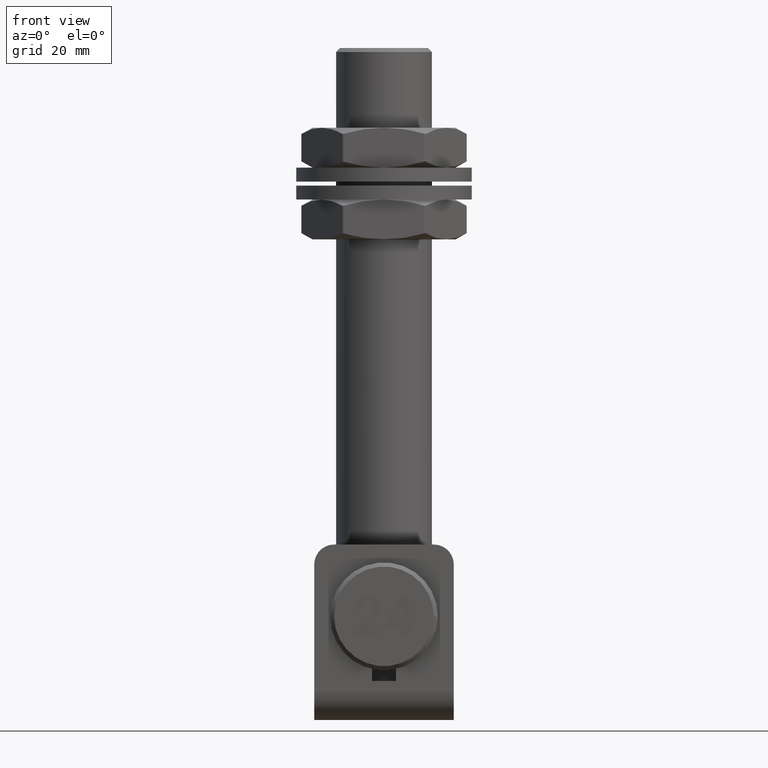
[diagram: clean part render]
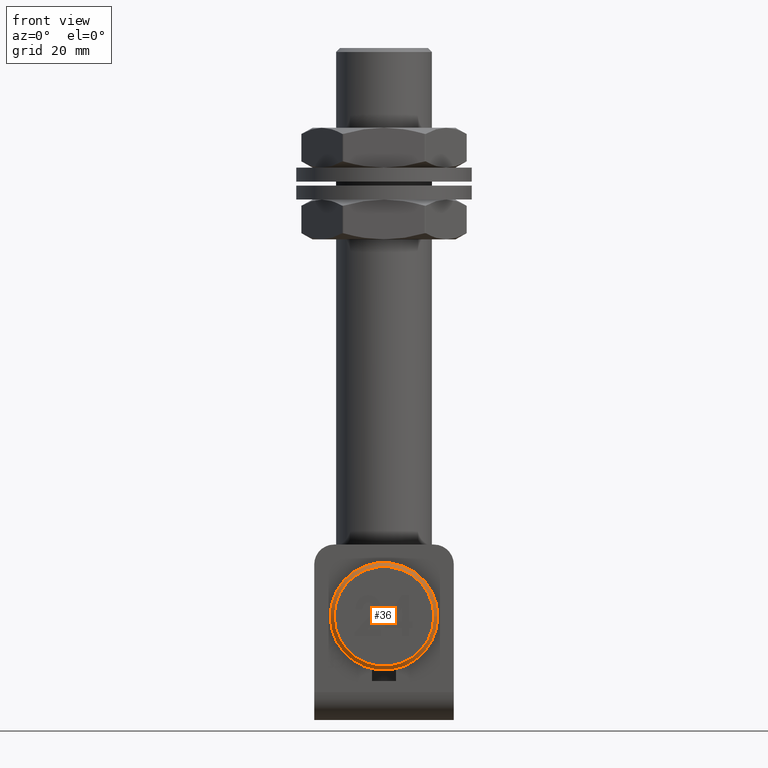
[diagram: same view with one face highlighted and labeled with its STEP entity id]
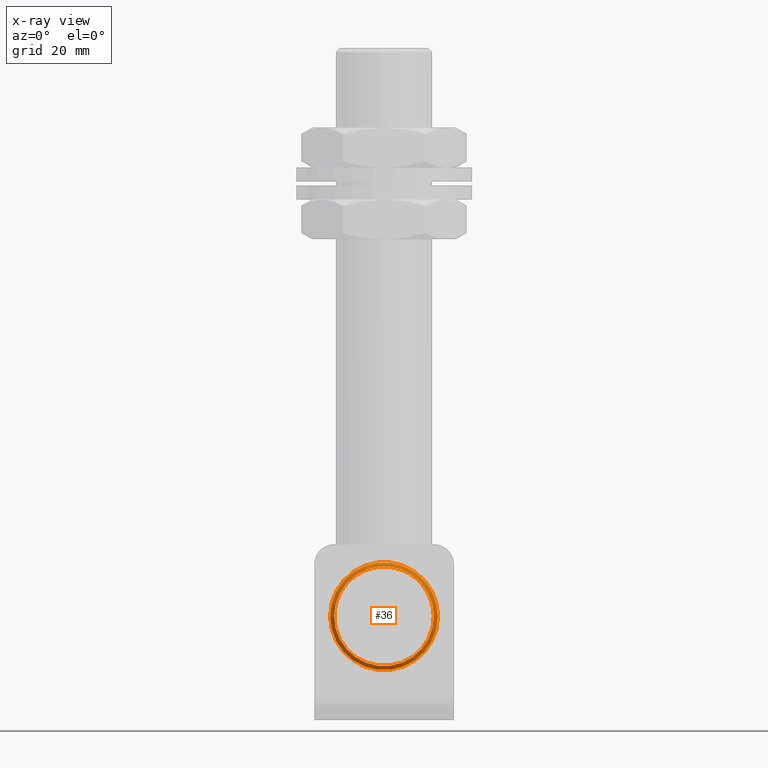
[diagram: x-ray of the same camera — body ghosted, the highlighted face saturated]
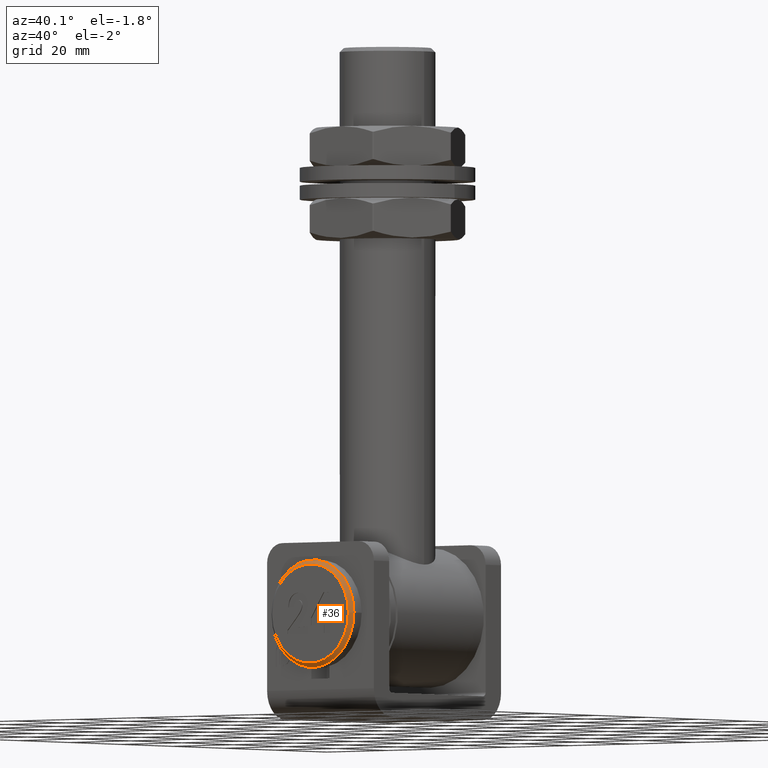
[diagram: same view with one face highlighted and labeled with its STEP entity id]
A machine part, front view. The second image highlights one B-rep face of the part: STEP entity #36.
The next image is the same camera in x-ray: the body ghosted, the highlighted face saturated — about 0% of this face is hidden behind the body in this view.
A second angle (auxiliary view) of the same face is appended — the face is thin or edge-on in the first view.
In plain terms, the highlighted conical surface has half-angle 45 deg.
Its self-contained STEP definition (entity closure, byte-faithful):
#36 = ADVANCED_FACE ( 'NONE', ( #10358, #1109 ), #22433, .T. ) ;
#436 = CARTESIAN_POINT ( 'NONE',  ( -13.50000000000000178, 1.000000000000001332, 0.000000000000000000 ) ) ;
#1109 = FACE_OUTER_BOUND ( 'NONE', #9641, .T. ) ;
#2121 = DIRECTION ( 'NONE',  ( -1.000000000000000000, 3.212450881438531131E-17, 0.000000000000000000 ) ) ;
#2244 = CARTESIAN_POINT ( 'NONE',  ( -12.49999999999999645, 4.091328952775487044E-16, 0.000000000000000000 ) ) ;
#4620 = VERTEX_POINT ( 'NONE', #2244 ) ;
#5046 = CARTESIAN_POINT ( 'NONE',  ( 0.000000000000000000, 0.000000000000000000, 0.000000000000000000 ) ) ;
#5701 = AXIS2_PLACEMENT_3D ( 'NONE', #22273, #18602, #2121 ) ;
#6980 = CARTESIAN_POINT ( 'NONE',  ( 3.273063162220312672E-17, 1.000000000000000888, 0.000000000000000000 ) ) ;
#7633 = ORIENTED_EDGE ( 'NONE', *, *, #21349, .F. ) ;
#8227 = EDGE_CURVE ( 'NONE', #4620, #4620, #13495, .T. ) ;
#8485 = DIRECTION ( 'NONE',  ( -1.000000000000000000, 3.273063162220390326E-17, 0.000000000000000000 ) ) ;
#8720 = AXIS2_PLACEMENT_3D ( 'NONE', #6980, #12499, #19903 ) ;
#9541 = EDGE_LOOP ( 'NONE', ( #22816 ) ) ;
#9641 = EDGE_LOOP ( 'NONE', ( #7633 ) ) ;
#9680 = AXIS2_PLACEMENT_3D ( 'NONE', #5046, #19507, #8485 ) ;
#10358 = FACE_BOUND ( 'NONE', #9541, .T. ) ;
#12339 = VERTEX_POINT ( 'NONE', #436 ) ;
#12499 = DIRECTION ( 'NONE',  ( 3.273063162220387860E-17, 1.000000000000000000, -1.097407307666327246E-31 ) ) ;
#13495 = CIRCLE ( 'NONE', #9680, 12.49999999999999645 ) ;
#16316 = CIRCLE ( 'NONE', #5701, 13.50000000000000178 ) ;
#18602 = DIRECTION ( 'NONE',  ( 3.273063162220387860E-17, 1.000000000000000000, -1.097407307666327246E-31 ) ) ;
#19507 = DIRECTION ( 'NONE',  ( -3.273063162220390326E-17, -1.000000000000000000, 1.097407307666327246E-31 ) ) ;
#19903 = DIRECTION ( 'NONE',  ( -1.000000000000000000, 3.212450881438531131E-17, 0.000000000000000000 ) ) ;
#21349 = EDGE_CURVE ( 'NONE', #12339, #12339, #16316, .T. ) ;
#22273 = CARTESIAN_POINT ( 'NONE',  ( 3.273063162220312672E-17, 1.000000000000000888, 0.000000000000000000 ) ) ;
#22433 = CONICAL_SURFACE ( 'NONE', #8720, 13.50000000000000178, 0.7853981633974500554 ) ;
#22816 = ORIENTED_EDGE ( 'NONE', *, *, #8227, .F. ) ;